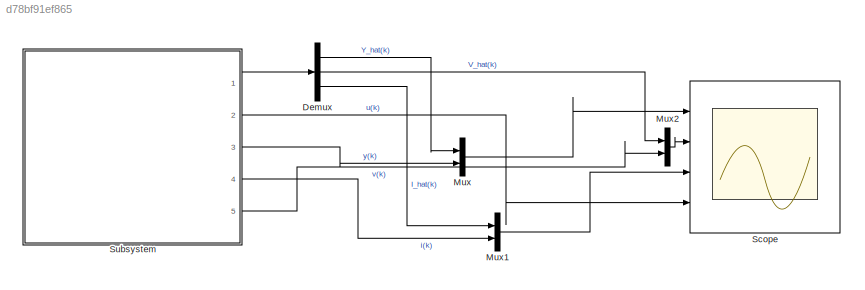
MODEL slx_d78bf91ef865
KIND model
CONFIG AbsTol = auto
CONFIG EnableMultiTasking = on
CONFIG FixedStep = auto
CONFIG MaxStep = auto
CONFIG MinStep = auto
CONFIG RelTol = 1e-3
CONFIG SampleTimeConstraint = Unconstrained
CONFIG Solver = FixedStepAuto
CONFIG SolverName = FixedStepAuto
CONFIG StartTime = 0.0
CONFIG StopTime = 15
BLOCK [Demux] Demux
  DisplayOption = bar
  Outputs = 3
  Ports = [1, 3]
BLOCK [Mux] Mux
  DisplayOption = bar
  Inputs = 2
  Ports = [2, 1]
BLOCK [Mux] Mux1
  DisplayOption = bar
  Inputs = 2
  Ports = [2, 1]
BLOCK [Mux] Mux2
  DisplayOption = bar
  Inputs = 2
  Ports = [2, 1]
BLOCK [Scope] Scope
  Floating = off
  NumInputPorts = 4
  Ports = [4]
  ScopeSpecificationString = Simulink.scopes.TimeScopeBlockCfg('CurrentConfiguration', extmgr.ConfigurationSet(extmgr.Configuration('Core','General UI',true),extmgr.Configuration('Core','Source UI',true),extmgr.Configuration('Sources','WiredSimulink',true),extmgr.Configuration('Visuals','Time Domain',true,'SerializedDisplays',{struct('MinYLimReal','0.01132','MaxYLimReal','0.01765','YLabelReal','','MinYLimMag','0.01132','MaxYL...<+3504ch>
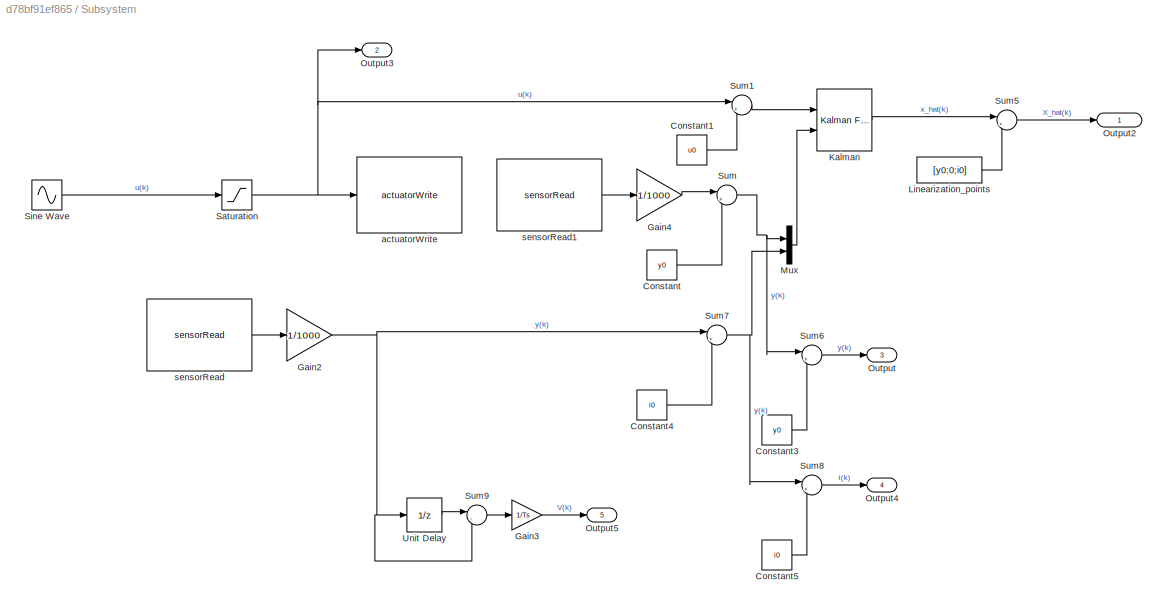
BLOCK [SubSystem] Subsystem
  Ports = [0, 5]
  RequestExecContextInheritance = off
BLOCK [Constant] Subsystem/Constant
  SampleTime = Ts
  Value = y0
BLOCK [Constant] Subsystem/Constant1
  SampleTime = Ts
  Value = u0
BLOCK [Constant] Subsystem/Constant3
  Value = y0
BLOCK [Constant] Subsystem/Constant4
  Value = i0
BLOCK [Constant] Subsystem/Constant5
  Value = i0
BLOCK [Gain] Subsystem/Gain2
  Gain = 1/1000
  OutDataTypeStr = Inherit: Inherit via internal rule
  ParamDataTypeStr = Inherit: Inherit via internal rule
  SaturateOnIntegerOverflow = off
BLOCK [Gain] Subsystem/Gain3
  Gain = 1/Ts
  OutDataTypeStr = Inherit: Inherit via internal rule
  ParamDataTypeStr = Inherit: Inherit via internal rule
  SaturateOnIntegerOverflow = off
BLOCK [Gain] Subsystem/Gain4
  Gain = 1/1000
  OutDataTypeStr = Inherit: Inherit via internal rule
  ParamDataTypeStr = Inherit: Inherit via internal rule
  SaturateOnIntegerOverflow = off
BLOCK [Reference] Subsystem/Kalman  REF=ctrlSharedLib/Kalman Filter
  Ports = [2, 1]
  SourceBlock = ctrlSharedLib/Kalman Filter
  SourceProductBaseCode = CT,ID
  SourceType = ctrlKalmanFilter
BLOCK [Constant] Subsystem/Linearization_points
  Value = [y0;0;i0]
BLOCK [Mux] Subsystem/Mux
  DisplayOption = bar
  Inputs = 2
  Ports = [2, 1]
BLOCK [Outport] Subsystem/Output
  IconDisplay = Signal name
  Port = 3
BLOCK [Outport] Subsystem/Output2
  IconDisplay = Signal name
BLOCK [Outport] Subsystem/Output3
  IconDisplay = Signal name
  Port = 2
BLOCK [Outport] Subsystem/Output4
  IconDisplay = Signal name
  Port = 4
BLOCK [Outport] Subsystem/Output5
  IconDisplay = Signal name
  Port = 5
BLOCK [Saturate] Subsystem/Saturation
  InputPortMap = u0
  LowerLimit = 0
  Ports = [1, 1]
  UpperLimit = 10
BLOCK [Sin] Subsystem/Sine Wave
  Amplitude = 5
  Bias = 5
  Frequency = 0.5
  Ports = [0, 1]
  SampleTime = Ts
BLOCK [Sum] Subsystem/Sum
  IconShape = round
  InputSameDT = off
  Inputs = |+-
  OutDataTypeStr = Inherit: Inherit via internal rule
  Ports = [2, 1]
  SaturateOnIntegerOverflow = off
BLOCK [Sum] Subsystem/Sum1
  IconShape = round
  InputSameDT = off
  Inputs = |+-
  OutDataTypeStr = Inherit: Inherit via internal rule
  Ports = [2, 1]
  SaturateOnIntegerOverflow = off
BLOCK [Sum] Subsystem/Sum5
  IconShape = round
  InputSameDT = off
  Inputs = |++
  OutDataTypeStr = Inherit: Inherit via internal rule
  Ports = [2, 1]
  SaturateOnIntegerOverflow = off
BLOCK [Sum] Subsystem/Sum6
  IconShape = round
  InputSameDT = off
  Inputs = |++
  OutDataTypeStr = Inherit: Inherit via internal rule
  Ports = [2, 1]
  SaturateOnIntegerOverflow = off
BLOCK [Sum] Subsystem/Sum7
  IconShape = round
  InputSameDT = off
  Inputs = |+-
  OutDataTypeStr = Inherit: Inherit via internal rule
  Ports = [2, 1]
  SaturateOnIntegerOverflow = off
BLOCK [Sum] Subsystem/Sum8
  IconShape = round
  InputSameDT = off
  Inputs = |++
  OutDataTypeStr = Inherit: Inherit via internal rule
  Ports = [2, 1]
  SaturateOnIntegerOverflow = off
BLOCK [Sum] Subsystem/Sum9
  IconShape = round
  InputSameDT = off
  Inputs = |-+
  OutDataTypeStr = Inherit: Inherit via internal rule
  Ports = [2, 1]
  SaturateOnIntegerOverflow = off
BLOCK [UnitDelay] Subsystem/Unit Delay
  HasFrameUpgradeWarning = on
  SampleTime = -1
BLOCK [Reference] Subsystem/actuatorWrite  REF=MagnetoLibrary/actuatorWrite
  Ports = [1]
  SourceBlock = MagnetoLibrary/actuatorWrite
  SourceProductName = AutomationShield
BLOCK [Reference] Subsystem/sensorRead  REF=MagnetoLibrary/sensorRead
  Ports = [0, 1]
  SourceBlock = MagnetoLibrary/sensorRead
  SourceProductName = AutomationShield
BLOCK [Reference] Subsystem/sensorRead1  REF=MagnetoLibrary/sensorRead
  Ports = [0, 1]
  SourceBlock = MagnetoLibrary/sensorRead
  SourceProductName = AutomationShield
LINE Demux:1 -> Mux:1
LINE Demux:2 -> Mux2:1
LINE Demux:3 -> Mux1:1
LINE Mux1:1 -> Scope:3
LINE Mux2:1 -> Scope:2
LINE Mux:1 -> Scope:1
LINE Subsystem/Constant1:1 -> Subsystem/Sum1:2
LINE Subsystem/Constant3:1 -> Subsystem/Sum6:2
LINE Subsystem/Constant4:1 -> Subsystem/Sum7:2
LINE Subsystem/Constant5:1 -> Subsystem/Sum8:2
LINE Subsystem/Constant:1 -> Subsystem/Sum:2
NET Subsystem/Gain2:1 -> Subsystem/Sum7:1, Subsystem/Sum9:2, Subsystem/Unit Delay:1
LINE Subsystem/Gain3:1 -> Subsystem/Output5:1
LINE Subsystem/Gain4:1 -> Subsystem/Sum:1
LINE Subsystem/Kalman:1 -> Subsystem/Sum5:1
LINE Subsystem/Linearization_points:1 -> Subsystem/Sum5:2
LINE Subsystem/Mux:1 -> Subsystem/Kalman:2
NET Subsystem/Saturation:1 -> Subsystem/Output3:1, Subsystem/Sum1:1, Subsystem/actuatorWrite:1
LINE Subsystem/Sine Wave:1 -> Subsystem/Saturation:1
LINE Subsystem/Sum1:1 -> Subsystem/Kalman:1
LINE Subsystem/Sum5:1 -> Subsystem/Output2:1
LINE Subsystem/Sum6:1 -> Subsystem/Output:1
NET Subsystem/Sum7:1 -> Subsystem/Mux:2, Subsystem/Sum8:1
LINE Subsystem/Sum8:1 -> Subsystem/Output4:1
LINE Subsystem/Sum9:1 -> Subsystem/Gain3:1
NET Subsystem/Sum:1 -> Subsystem/Mux:1, Subsystem/Sum6:1
LINE Subsystem/Unit Delay:1 -> Subsystem/Sum9:1
LINE Subsystem/sensorRead1:1 -> Subsystem/Gain4:1
LINE Subsystem/sensorRead:1 -> Subsystem/Gain2:1
LINE Subsystem:1 -> Demux:1
LINE Subsystem:2 -> Scope:4
LINE Subsystem:3 -> Mux:2
LINE Subsystem:4 -> Mux1:2
LINE Subsystem:5 -> Mux2:2
note: NET lines group one-source signal fan-out (src -> all destinations, sorted); 1:1 wires keep LINE
